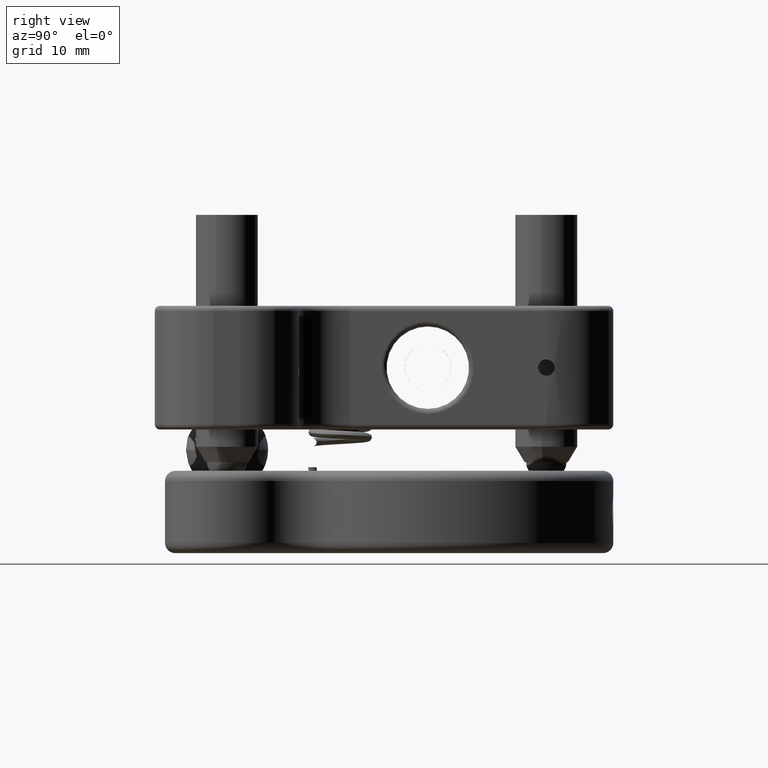
[diagram: clean part render]
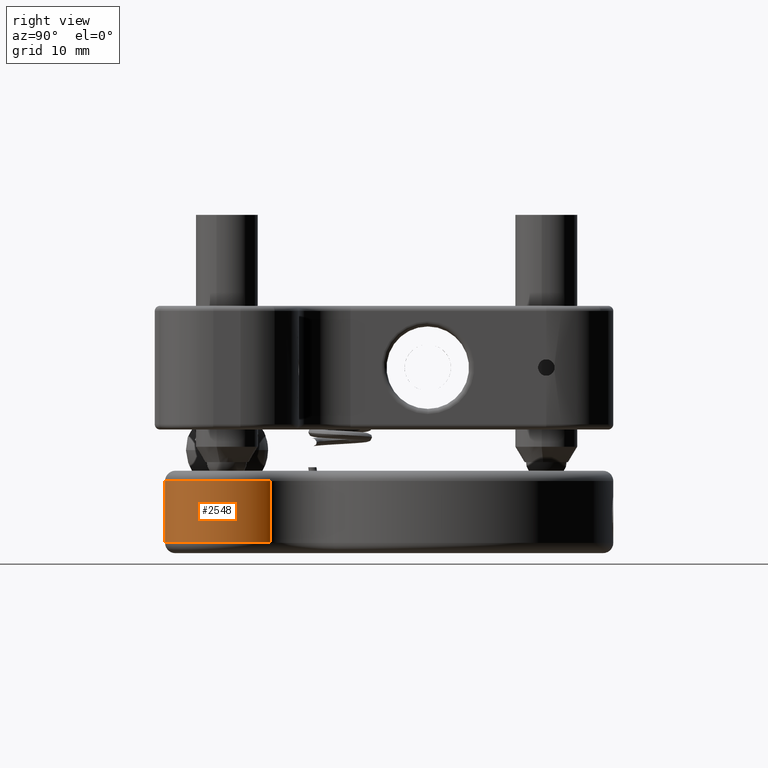
[diagram: same view with one face highlighted and labeled with its STEP entity id]
A machine part, right view. The second image highlights one B-rep face of the part: STEP entity #2548.
In plain terms, the highlighted cylindrical surface (partial cylindrical patch) has radius 6 mm, axis along (0, -0, -1).
Its self-contained STEP definition (entity closure, byte-faithful):
#421 = ORIENTED_EDGE ( 'NONE', *, *, #6388, .T. ) ;
#925 = CARTESIAN_POINT ( 'NONE',  ( 31.49999999999997200, -6.765421556309547700E-014, -17.00000000000000700 ) ) ;
#1077 = DIRECTION ( 'NONE',  ( 0.0000000000000000000, -2.775557561562892000E-017, -1.000000000000000000 ) ) ;
#1085 = DIRECTION ( 'NONE',  ( 0.0000000000000000000, -2.775557561562892000E-017, -1.000000000000000000 ) ) ;
#1577 = CARTESIAN_POINT ( 'NONE',  ( 35.74629777204158600, 4.238980447130401800, -11.00000000000000700 ) ) ;
#2268 = ORIENTED_EDGE ( 'NONE', *, *, #6415, .T. ) ;
#2276 = VECTOR ( 'NONE', #7757, 1000.000000000000000 ) ;
#2439 = ORIENTED_EDGE ( 'NONE', *, *, #5837, .T. ) ;
#2548 = ADVANCED_FACE ( 'NONE', ( #19052 ), #12424, .T. ) ;
#2649 = DIRECTION ( 'NONE',  ( -2.312964634635741100E-015, -1.000000000000000000, 0.0000000000000000000 ) ) ;
#3403 = LINE ( 'NONE', #9295, #7366 ) ;
#5076 = VERTEX_POINT ( 'NONE', #19597 ) ;
#5837 = EDGE_CURVE ( 'NONE', #17165, #11017, #8603, .T. ) ;
#6388 = EDGE_CURVE ( 'NONE', #5076, #17519, #16352, .T. ) ;
#6415 = EDGE_CURVE ( 'NONE', #11017, #5076, #20841, .T. ) ;
#7366 = VECTOR ( 'NONE', #16069, 1000.000000000000000 ) ;
#7757 = DIRECTION ( 'NONE',  ( 0.0000000000000000000, -2.775557561562892000E-017, -1.000000000000000000 ) ) ;
#8052 = EDGE_CURVE ( 'NONE', #17165, #17519, #3403, .T. ) ;
#8603 = CIRCLE ( 'NONE', #20525, 6.000000000000004400 ) ;
#9295 = CARTESIAN_POINT ( 'NONE',  ( 35.74629777204158600, 4.238980447130401800, -10.00000000000000700 ) ) ;
#9590 = CARTESIAN_POINT ( 'NONE',  ( 31.49999999999997200, -6.765421556309547700E-014, -10.00000000000000900 ) ) ;
#11017 = VERTEX_POINT ( 'NONE', #15128 ) ;
#11215 = CARTESIAN_POINT ( 'NONE',  ( 31.49999999999997200, -6.765421556309547700E-014, -11.00000000000000700 ) ) ;
#12424 = CYLINDRICAL_SURFACE ( 'NONE', #13971, 6.000000000000004400 ) ;
#12802 = DIRECTION ( 'NONE',  ( -0.0000000000000000000, 2.775557561562892000E-017, 1.000000000000000000 ) ) ;
#12958 = DIRECTION ( 'NONE',  ( -2.312964634635741100E-015, -1.000000000000000000, 0.0000000000000000000 ) ) ;
#13174 = AXIS2_PLACEMENT_3D ( 'NONE', #925, #12802, #2649 ) ;
#13971 = AXIS2_PLACEMENT_3D ( 'NONE', #9590, #1085, #19844 ) ;
#15128 = CARTESIAN_POINT ( 'NONE',  ( 31.49999999999995700, -6.000000000000071900, -11.00000000000000700 ) ) ;
#15133 = EDGE_LOOP ( 'NONE', ( #2439, #2268, #421, #15455 ) ) ;
#15455 = ORIENTED_EDGE ( 'NONE', *, *, #8052, .F. ) ;
#16069 = DIRECTION ( 'NONE',  ( 0.0000000000000000000, -2.775557561562892000E-017, -1.000000000000000000 ) ) ;
#16224 = CARTESIAN_POINT ( 'NONE',  ( 35.74629777204158600, 4.238980447130401800, -17.00000000000000700 ) ) ;
#16352 = CIRCLE ( 'NONE', #13174, 6.000000000000004400 ) ;
#17165 = VERTEX_POINT ( 'NONE', #1577 ) ;
#17519 = VERTEX_POINT ( 'NONE', #16224 ) ;
#19052 = FACE_OUTER_BOUND ( 'NONE', #15133, .T. ) ;
#19597 = CARTESIAN_POINT ( 'NONE',  ( 31.49999999999995700, -6.000000000000071900, -17.00000000000000700 ) ) ;
#19844 = DIRECTION ( 'NONE',  ( -2.312964634635741100E-015, -1.000000000000000000, 0.0000000000000000000 ) ) ;
#20525 = AXIS2_PLACEMENT_3D ( 'NONE', #11215, #1077, #12958 ) ;
#20841 = LINE ( 'NONE', #21323, #2276 ) ;
#21323 = CARTESIAN_POINT ( 'NONE',  ( 31.49999999999995700, -6.000000000000071900, -10.00000000000000900 ) ) ;